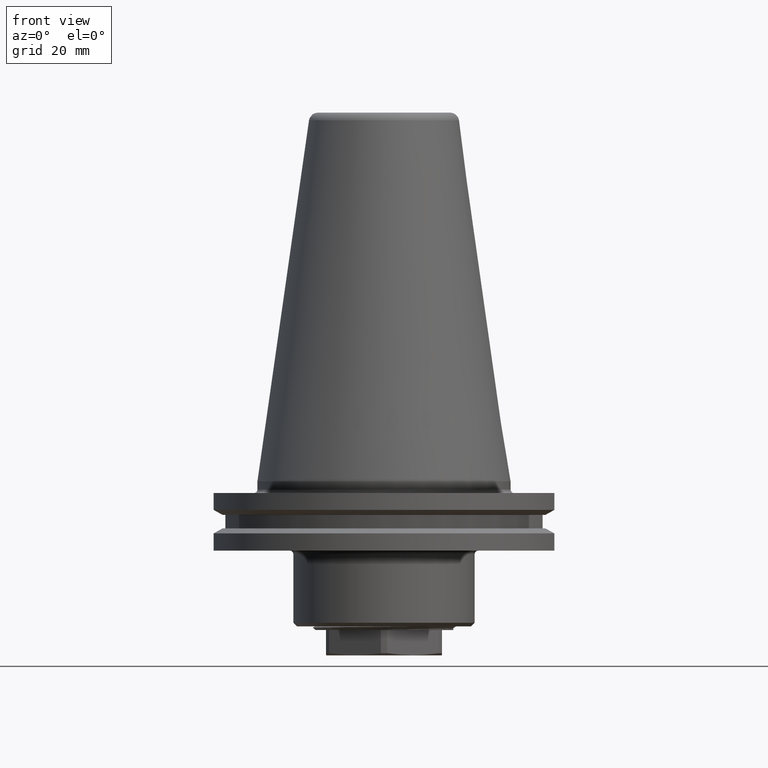
[diagram: clean part render]
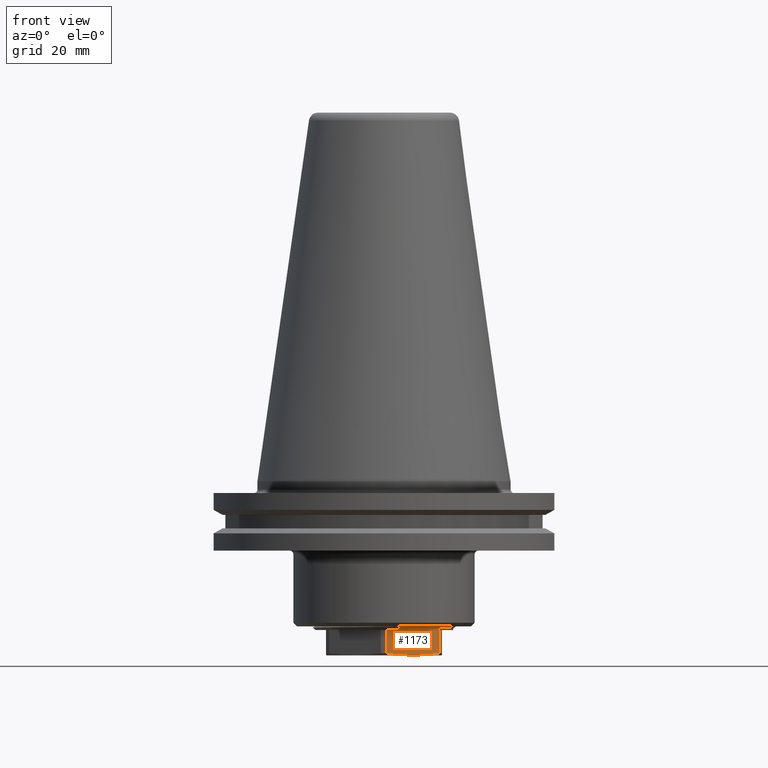
[diagram: same view with one face highlighted and labeled with its STEP entity id]
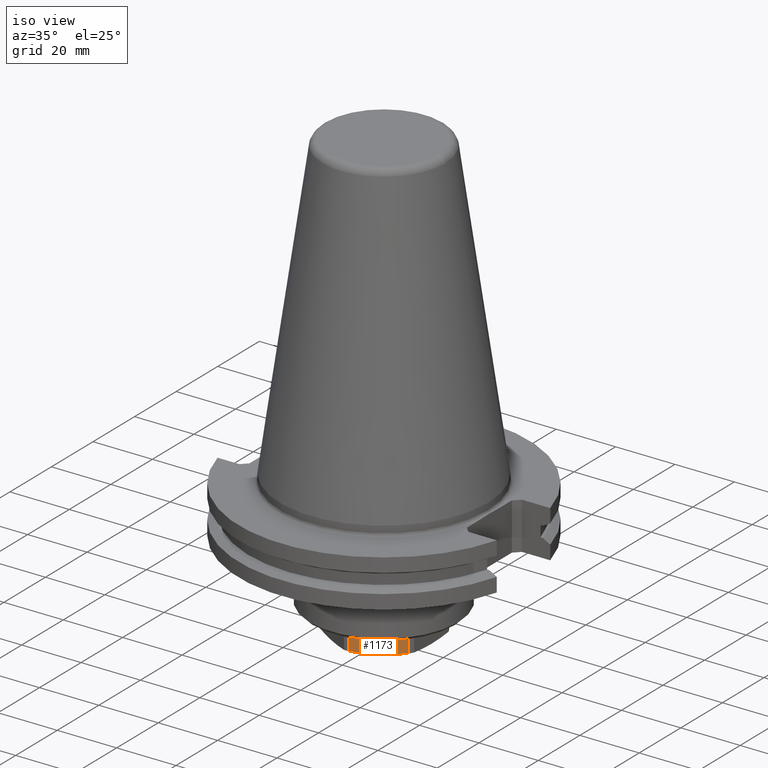
[diagram: same view with one face highlighted and labeled with its STEP entity id]
A machine part, front view. The second image highlights one B-rep face of the part: STEP entity #1173.
A second angle (iso view) of the same face is appended — the face is thin or edge-on in the first view.
In plain terms, the highlighted planar face has unit normal (0.5, -0.866, -0).
Its self-contained STEP definition (entity closure, byte-faithful):
#98=LINE('',#2041,#180);
#99=LINE('',#2043,#181);
#100=LINE('',#2045,#182);
#180=VECTOR('',#1595,1000.);
#181=VECTOR('',#1598,1000.);
#182=VECTOR('',#1599,1000.);
#206=B_SPLINE_CURVE_WITH_KNOTS('',3,(#1977,#1978,#1979,#1980,#1981),
 .UNSPECIFIED.,.F.,.F.,(4,1,4),(1.62915234563908E-6,0.00824784040358091,
0.0164940516548162),.UNSPECIFIED.);
#512=ORIENTED_EDGE('',*,*,#718,.T.);
#513=ORIENTED_EDGE('',*,*,#695,.T.);
#514=ORIENTED_EDGE('',*,*,#717,.T.);
#515=ORIENTED_EDGE('',*,*,#719,.F.);
#695=EDGE_CURVE('',#826,#825,#206,.T.);
#717=EDGE_CURVE('',#825,#841,#98,.F.);
#718=EDGE_CURVE('',#842,#826,#99,.T.);
#719=EDGE_CURVE('',#842,#841,#100,.T.);
#825=VERTEX_POINT('',#1976);
#826=VERTEX_POINT('',#1982);
#841=VERTEX_POINT('',#2040);
#842=VERTEX_POINT('',#2044);
#974=EDGE_LOOP('',(#512,#513,#514,#515));
#1063=FACE_BOUND('',#974,.T.);
#1115=PLANE('',#1301);
#1173=ADVANCED_FACE('',(#1063),#1115,.T.);
#1301=AXIS2_PLACEMENT_3D('',#2042,#1596,#1597);
#1595=DIRECTION('',(-1.87792207848866E-16,-1.75763447640537E-16,-1.));
#1596=DIRECTION('',(0.500000000000001,-0.866025403784438,-2.37800597316071E-16));
#1597=DIRECTION('',(0.866025403784438,0.500000000000002,-2.63118433298232E-16));
#1598=DIRECTION('',(-1.87792207848866E-16,-1.75763447640537E-16,-1.));
#1599=DIRECTION('',(0.866025403784438,0.500000000000002,-2.63118433298232E-16));
#1976=CARTESIAN_POINT('',(15.1414284285428,-9.73330083493338,-47.4));
#1977=CARTESIAN_POINT('',(0.85857157145722,-17.9795120861687,-47.4));
#1978=CARTESIAN_POINT('',(3.23904771430482,-16.6051435442961,-47.7374175015799));
#1979=CARTESIAN_POINT('',(8.00000000000002,-13.856406460551,-48.1343792681446));
#1980=CARTESIAN_POINT('',(12.7609522856952,-11.1076693768059,-47.7374175015799));
#1981=CARTESIAN_POINT('',(15.1414284285428,-9.73330083493336,-47.4));
#1982=CARTESIAN_POINT('',(0.858571571457233,-17.9795120861687,-47.4));
#2040=CARTESIAN_POINT('',(15.1414284285428,-9.73330083493338,-41.));
#2041=CARTESIAN_POINT('',(15.1414284285428,-9.73330083493338,-49.));
#2042=CARTESIAN_POINT('',(16.,-9.23760430703403,19.6585793214144));
#2043=CARTESIAN_POINT('',(0.858571571457232,-17.9795120861687,-49.));
#2044=CARTESIAN_POINT('',(0.858571571457234,-17.9795120861687,-41.));
#2045=CARTESIAN_POINT('',(-0.227241335952149,-18.6064064605511,-41.));